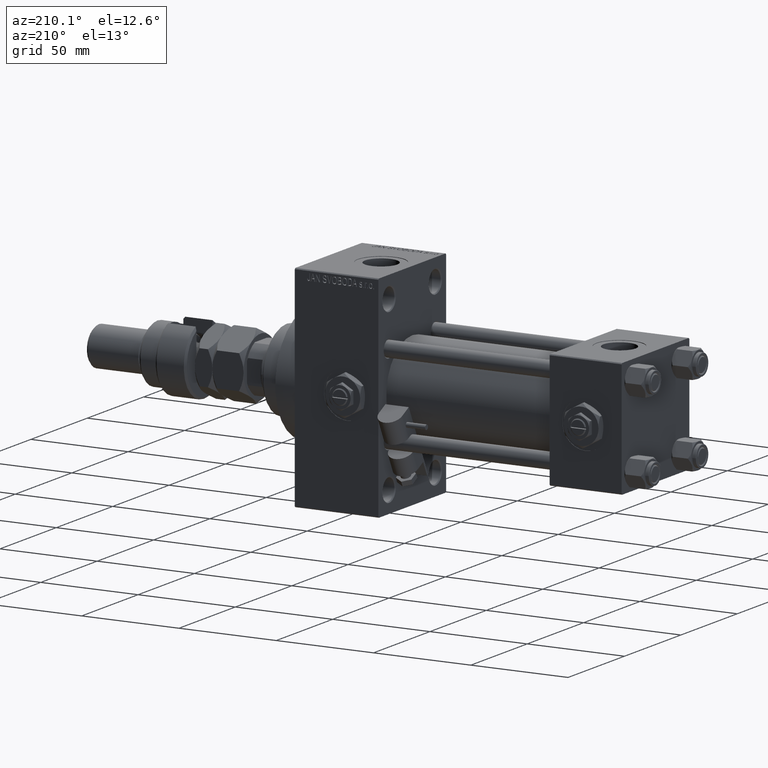
[diagram: clean part render]
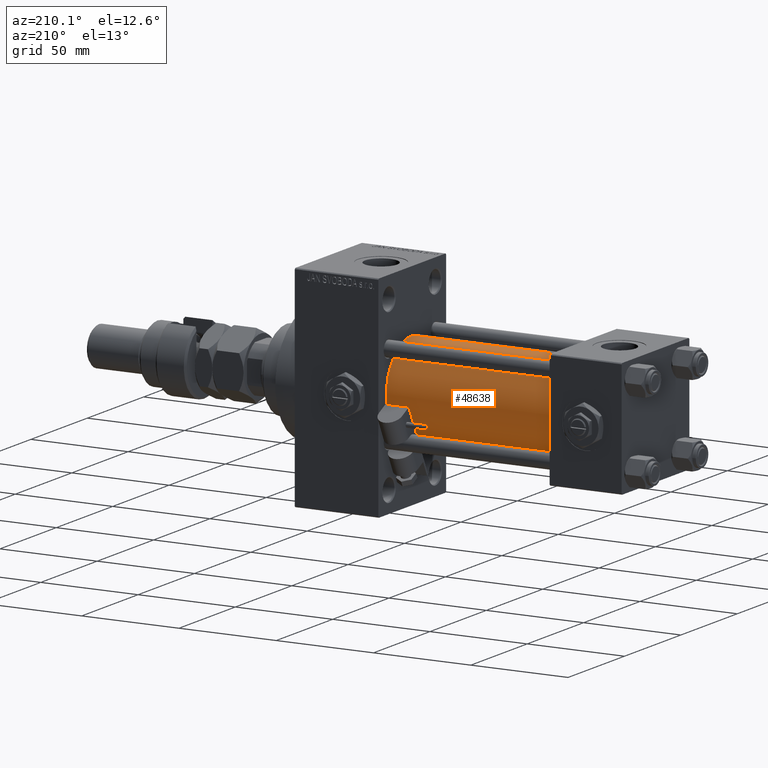
[diagram: same view with one face highlighted and labeled with its STEP entity id]
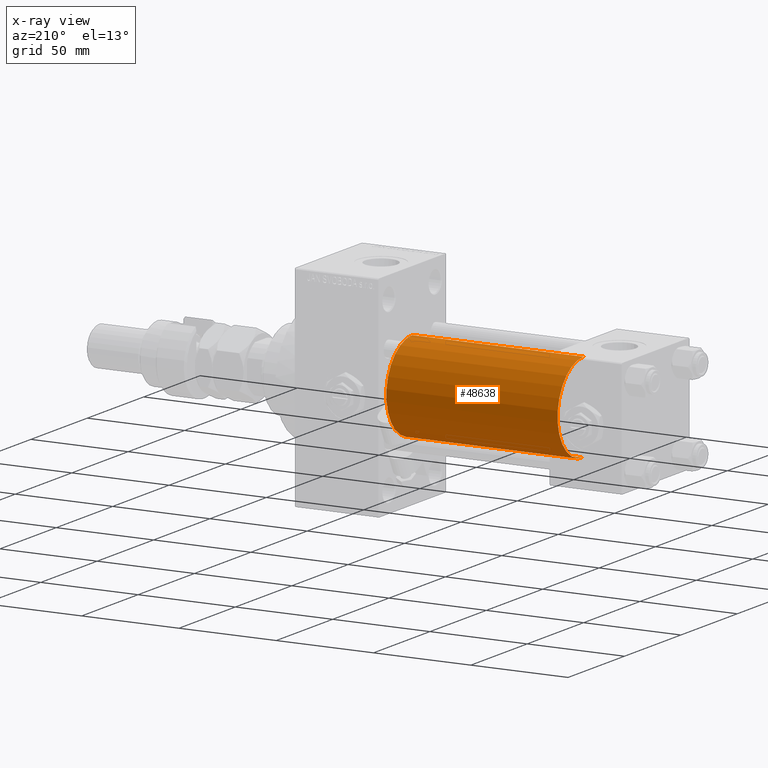
[diagram: x-ray of the same camera — body ghosted, the highlighted face saturated]
A machine part, auxiliary view. The second image highlights one B-rep face of the part: STEP entity #48638.
The next image is the same camera in x-ray: the body ghosted, the highlighted face saturated — about 0% of this face is hidden behind the body in this view.
In plain terms, the highlighted cylindrical surface (partial cylindrical patch) has radius 23 mm, axis along (-1, -0, -0).
Its self-contained STEP definition (entity closure, byte-faithful):
#3182 = CARTESIAN_POINT ( 'NONE',  ( 37.00000000000000711, 2.146024240737016609E-16, -23.00000000000000000 ) ) ;
#3792 = CYLINDRICAL_SURFACE ( 'NONE', #48694, 23.00000000000000000 ) ;
#4189 = DIRECTION ( 'NONE',  ( 0.000000000000000000, 0.000000000000000000, -1.000000000000000000 ) ) ;
#6890 = DIRECTION ( 'NONE',  ( 0.000000000000000000, 0.000000000000000000, 1.000000000000000000 ) ) ;
#8984 = CARTESIAN_POINT ( 'NONE',  ( 125.0000000000000000, 2.146024240737016609E-16, -23.00000000000000000 ) ) ;
#9725 = VECTOR ( 'NONE', #17590, 1000.000000000000000 ) ;
#10776 = VERTEX_POINT ( 'NONE', #8984 ) ;
#11227 = VERTEX_POINT ( 'NONE', #46442 ) ;
#11978 = EDGE_CURVE ( 'NONE', #10776, #45860, #20852, .T. ) ;
#13522 = CARTESIAN_POINT ( 'NONE',  ( 125.0000000000000000, 2.146024240737016609E-16, -23.00000000000000000 ) ) ;
#17590 = DIRECTION ( 'NONE',  ( -1.000000000000000000, -0.000000000000000000, -0.000000000000000000 ) ) ;
#18240 = CIRCLE ( 'NONE', #50187, 23.00000000000000000 ) ;
#18877 = ORIENTED_EDGE ( 'NONE', *, *, #11978, .T. ) ;
#20835 = EDGE_LOOP ( 'NONE', ( #42397, #18877, #31575, #27045 ) ) ;
#20852 = LINE ( 'NONE', #13522, #9725 ) ;
#22882 = CARTESIAN_POINT ( 'NONE',  ( 125.0000000000000000, -2.602085213965210642E-15, 23.00000000000000000 ) ) ;
#23111 = AXIS2_PLACEMENT_3D ( 'NONE', #35826, #52564, #6890 ) ;
#25108 = EDGE_CURVE ( 'NONE', #45860, #11227, #36072, .T. ) ;
#25117 = FACE_OUTER_BOUND ( 'NONE', #20835, .T. ) ;
#27045 = ORIENTED_EDGE ( 'NONE', *, *, #49483, .F. ) ;
#31575 = ORIENTED_EDGE ( 'NONE', *, *, #25108, .T. ) ;
#32715 = CARTESIAN_POINT ( 'NONE',  ( 125.0000000000000000, -2.602085213965210642E-15, 0.000000000000000000 ) ) ;
#35325 = DIRECTION ( 'NONE',  ( -1.000000000000000000, -0.000000000000000000, -0.000000000000000000 ) ) ;
#35826 = CARTESIAN_POINT ( 'NONE',  ( 37.00000000000000711, -2.602085213965210642E-15, 0.000000000000000000 ) ) ;
#36072 = CIRCLE ( 'NONE', #23111, 23.00000000000000000 ) ;
#36310 = EDGE_CURVE ( 'NONE', #10776, #36655, #18240, .T. ) ;
#36655 = VERTEX_POINT ( 'NONE', #39171 ) ;
#37486 = VECTOR ( 'NONE', #35325, 1000.000000000000000 ) ;
#39171 = CARTESIAN_POINT ( 'NONE',  ( 125.0000000000000000, -2.602085213965210642E-15, 23.00000000000000000 ) ) ;
#41214 = CARTESIAN_POINT ( 'NONE',  ( 125.0000000000000000, -2.602085213965210642E-15, 0.000000000000000000 ) ) ;
#41344 = DIRECTION ( 'NONE',  ( 0.000000000000000000, 0.000000000000000000, 1.000000000000000000 ) ) ;
#41614 = DIRECTION ( 'NONE',  ( -1.000000000000000000, -0.000000000000000000, -0.000000000000000000 ) ) ;
#42397 = ORIENTED_EDGE ( 'NONE', *, *, #36310, .F. ) ;
#45860 = VERTEX_POINT ( 'NONE', #3182 ) ;
#46442 = CARTESIAN_POINT ( 'NONE',  ( 37.00000000000000711, -2.602085213965210642E-15, 23.00000000000000000 ) ) ;
#48638 = ADVANCED_FACE ( 'NONE', ( #25117 ), #3792, .T. ) ;
#48694 = AXIS2_PLACEMENT_3D ( 'NONE', #32715, #41614, #41344 ) ;
#48812 = DIRECTION ( 'NONE',  ( 1.000000000000000000, 0.000000000000000000, 0.000000000000000000 ) ) ;
#49483 = EDGE_CURVE ( 'NONE', #36655, #11227, #52351, .T. ) ;
#50187 = AXIS2_PLACEMENT_3D ( 'NONE', #41214, #48812, #4189 ) ;
#52351 = LINE ( 'NONE', #22882, #37486 ) ;
#52564 = DIRECTION ( 'NONE',  ( 1.000000000000000000, -0.000000000000000000, 0.000000000000000000 ) ) ;